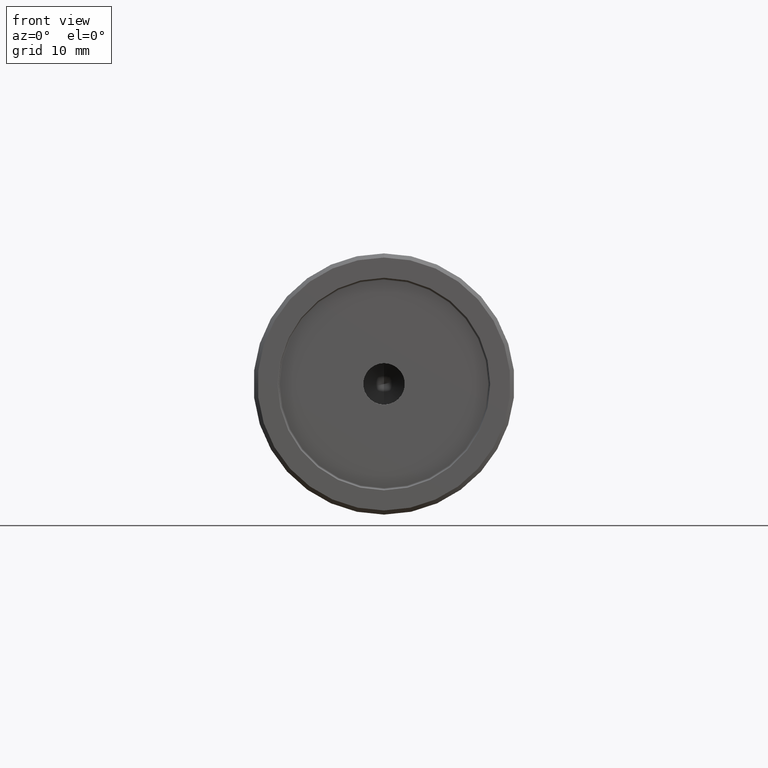
[diagram: clean part render]
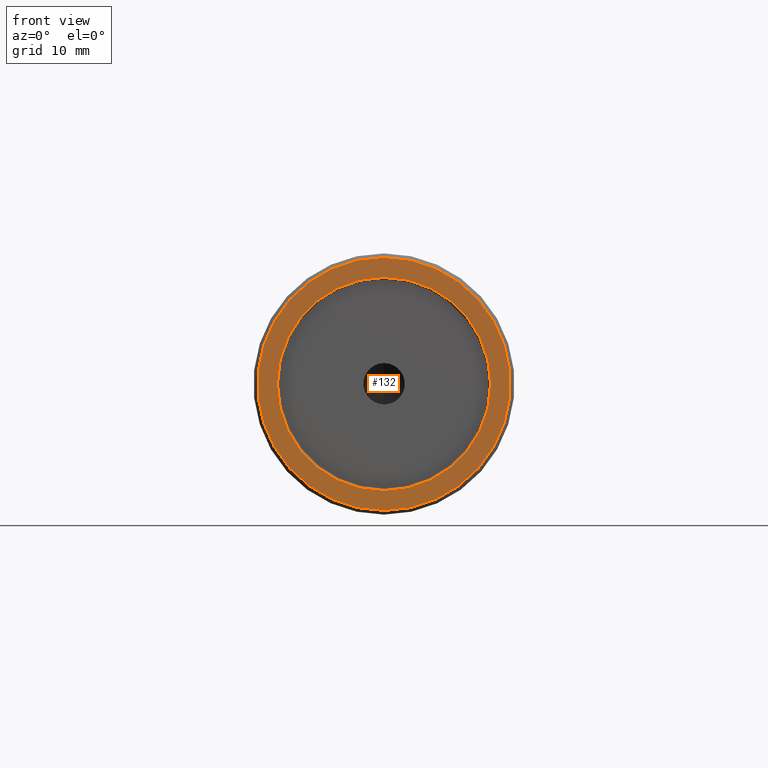
[diagram: same view with one face highlighted and labeled with its STEP entity id]
A machine part, front view. The second image highlights one B-rep face of the part: STEP entity #132.
In plain terms, the highlighted planar face has unit normal (0, 1, 0).
Its self-contained STEP definition (entity closure, byte-faithful):
#86 = AXIS2_PLACEMENT_3D ( 'NONE', #769, #555, #138 ) ;
#91 = CIRCLE ( 'NONE', #1217, 12.84999999999999787 ) ;
#126 = VERTEX_POINT ( 'NONE', #1365 ) ;
#132 = ADVANCED_FACE ( 'NONE', ( #1146, #216 ), #1263, .F. ) ;
#138 = DIRECTION ( 'NONE',  ( 0.000000000000000000, 0.000000000000000000, 1.000000000000000000 ) ) ;
#162 = CARTESIAN_POINT ( 'NONE',  ( 0.000000000000000000, -9.893344823930227960E-16, 0.000000000000000000 ) ) ;
#173 = CARTESIAN_POINT ( 'NONE',  ( 0.000000000000000000, -1.734723475976807094E-15, 0.000000000000000000 ) ) ;
#195 = VERTEX_POINT ( 'NONE', #549 ) ;
#216 = FACE_OUTER_BOUND ( 'NONE', #697, .T. ) ;
#218 = VERTEX_POINT ( 'NONE', #443 ) ;
#250 = DIRECTION ( 'NONE',  ( 0.000000000000000000, 0.000000000000000000, -1.000000000000000000 ) ) ;
#269 = EDGE_CURVE ( 'NONE', #195, #622, #786, .T. ) ;
#271 = DIRECTION ( 'NONE',  ( 0.000000000000000000, 1.000000000000000000, 0.000000000000000000 ) ) ;
#334 = AXIS2_PLACEMENT_3D ( 'NONE', #813, #1334, #1366 ) ;
#341 = ORIENTED_EDGE ( 'NONE', *, *, #561, .T. ) ;
#381 = EDGE_CURVE ( 'NONE', #218, #126, #1268, .T. ) ;
#408 = DIRECTION ( 'NONE',  ( 0.000000000000000000, -0.000000000000000000, 1.000000000000000000 ) ) ;
#443 = CARTESIAN_POINT ( 'NONE',  ( 0.000000000000000000, -1.734723475976807094E-15, 15.25000000000000000 ) ) ;
#470 = ORIENTED_EDGE ( 'NONE', *, *, #269, .T. ) ;
#508 = EDGE_LOOP ( 'NONE', ( #341, #470 ) ) ;
#542 = CIRCLE ( 'NONE', #334, 15.25000000000000000 ) ;
#549 = CARTESIAN_POINT ( 'NONE',  ( 1.573671136904348665E-15, -7.995991022080595201E-16, -12.84999999999999787 ) ) ;
#555 = DIRECTION ( 'NONE',  ( 0.000000000000000000, 1.000000000000000000, 0.000000000000000000 ) ) ;
#561 = EDGE_CURVE ( 'NONE', #622, #195, #91, .T. ) ;
#622 = VERTEX_POINT ( 'NONE', #1126 ) ;
#634 = ORIENTED_EDGE ( 'NONE', *, *, #1122, .T. ) ;
#644 = AXIS2_PLACEMENT_3D ( 'NONE', #736, #1255, #408 ) ;
#697 = EDGE_LOOP ( 'NONE', ( #1049, #634 ) ) ;
#736 = CARTESIAN_POINT ( 'NONE',  ( -12.75000000000000000, -9.832248198771265819E-16, 0.000000000000000000 ) ) ;
#769 = CARTESIAN_POINT ( 'NONE',  ( 0.000000000000000000, -9.893344823930227960E-16, 0.000000000000000000 ) ) ;
#786 = CIRCLE ( 'NONE', #86, 12.84999999999999787 ) ;
#813 = CARTESIAN_POINT ( 'NONE',  ( 0.000000000000000000, -1.734723475976807094E-15, 0.000000000000000000 ) ) ;
#908 = DIRECTION ( 'NONE',  ( 0.000000000000000000, 0.000000000000000000, 1.000000000000000000 ) ) ;
#1013 = DIRECTION ( 'NONE',  ( -0.000000000000000000, -1.000000000000000000, -0.000000000000000000 ) ) ;
#1049 = ORIENTED_EDGE ( 'NONE', *, *, #381, .T. ) ;
#1068 = AXIS2_PLACEMENT_3D ( 'NONE', #173, #1013, #250 ) ;
#1122 = EDGE_CURVE ( 'NONE', #126, #218, #542, .T. ) ;
#1126 = CARTESIAN_POINT ( 'NONE',  ( 0.000000000000000000, -7.995991022080595201E-16, 12.84999999999999787 ) ) ;
#1146 = FACE_BOUND ( 'NONE', #508, .T. ) ;
#1217 = AXIS2_PLACEMENT_3D ( 'NONE', #162, #271, #908 ) ;
#1255 = DIRECTION ( 'NONE',  ( 0.000000000000000000, 1.000000000000000000, 0.000000000000000000 ) ) ;
#1263 = PLANE ( 'NONE',  #644 ) ;
#1268 = CIRCLE ( 'NONE', #1068, 15.25000000000000000 ) ;
#1334 = DIRECTION ( 'NONE',  ( -0.000000000000000000, -1.000000000000000000, -0.000000000000000000 ) ) ;
#1365 = CARTESIAN_POINT ( 'NONE',  ( 1.898202538678397557E-15, -1.734723475976807094E-15, -15.25000000000000000 ) ) ;
#1366 = DIRECTION ( 'NONE',  ( 0.000000000000000000, 0.000000000000000000, -1.000000000000000000 ) ) ;